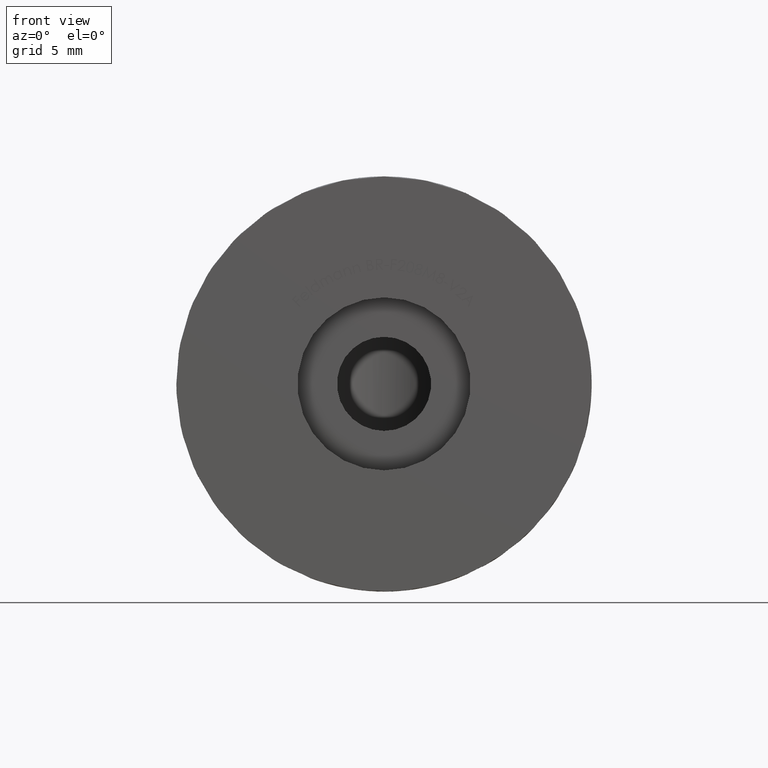
[diagram: clean part render]
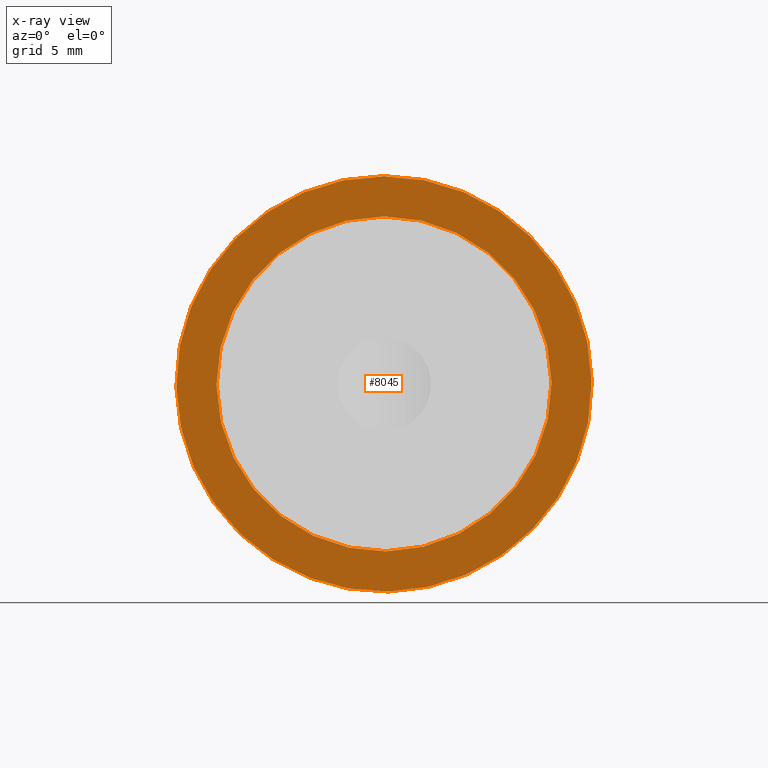
[diagram: x-ray — body ghosted, one internal face saturated and labeled with its STEP entity id]
A machine part, front view, then the same camera in x-ray: the body is ghosted and one INTERNAL B-rep face — a face not visible from any outside direction — is saturated and labeled: STEP entity #8045.
In plain terms, the highlighted planar face has unit normal (0, -1, 0).
Its self-contained STEP definition (entity closure, byte-faithful):
#2065 = EDGE_LOOP ( 'NONE', ( #4531 ) ) ;
#3062 = CARTESIAN_POINT ( 'NONE',  ( 0.0000000000000000000, 15.00000000000000000, 0.0000000000000000000 ) ) ;
#3889 = PLANE ( 'NONE',  #16713 ) ;
#4327 = VERTEX_POINT ( 'NONE', #6207 ) ;
#4531 = ORIENTED_EDGE ( 'NONE', *, *, #15632, .T. ) ;
#5251 = DIRECTION ( 'NONE',  ( 0.0000000000000000000, 1.000000000000000000, 0.0000000000000000000 ) ) ;
#6207 = CARTESIAN_POINT ( 'NONE',  ( 0.0000000000000000000, 15.00000000000000000, 15.00000000000000000 ) ) ;
#7090 = CIRCLE ( 'NONE', #10578, 12.10000000000000000 ) ;
#7350 = DIRECTION ( 'NONE',  ( 0.0000000000000000000, 0.0000000000000000000, 1.000000000000000000 ) ) ;
#8045 = ADVANCED_FACE ( 'NONE', ( #10845, #15812 ), #3889, .T. ) ;
#8108 = CARTESIAN_POINT ( 'NONE',  ( 0.0000000000000000000, 15.00000000000000000, 0.0000000000000000000 ) ) ;
#8791 = DIRECTION ( 'NONE',  ( 0.0000000000000000000, 1.000000000000000000, 0.0000000000000000000 ) ) ;
#10133 = VERTEX_POINT ( 'NONE', #13050 ) ;
#10578 = AXIS2_PLACEMENT_3D ( 'NONE', #3062, #13450, #16225 ) ;
#10845 = FACE_OUTER_BOUND ( 'NONE', #2065, .T. ) ;
#12063 = CIRCLE ( 'NONE', #16329, 15.00000000000000000 ) ;
#13050 = CARTESIAN_POINT ( 'NONE',  ( 0.0000000000000000000, 15.00000000000000000, 12.10000000000000000 ) ) ;
#13450 = DIRECTION ( 'NONE',  ( 0.0000000000000000000, 1.000000000000000000, 0.0000000000000000000 ) ) ;
#14523 = DIRECTION ( 'NONE',  ( 0.0000000000000000000, -0.0000000000000000000, 1.000000000000000000 ) ) ;
#14823 = ORIENTED_EDGE ( 'NONE', *, *, #16285, .F. ) ;
#15632 = EDGE_CURVE ( 'NONE', #4327, #4327, #12063, .T. ) ;
#15812 = FACE_BOUND ( 'NONE', #16587, .T. ) ;
#16225 = DIRECTION ( 'NONE',  ( 0.0000000000000000000, 0.0000000000000000000, 1.000000000000000000 ) ) ;
#16285 = EDGE_CURVE ( 'NONE', #10133, #10133, #7090, .T. ) ;
#16329 = AXIS2_PLACEMENT_3D ( 'NONE', #16677, #8791, #7350 ) ;
#16587 = EDGE_LOOP ( 'NONE', ( #14823 ) ) ;
#16677 = CARTESIAN_POINT ( 'NONE',  ( 0.0000000000000000000, 15.00000000000000000, 0.0000000000000000000 ) ) ;
#16713 = AXIS2_PLACEMENT_3D ( 'NONE', #8108, #5251, #14523 ) ;